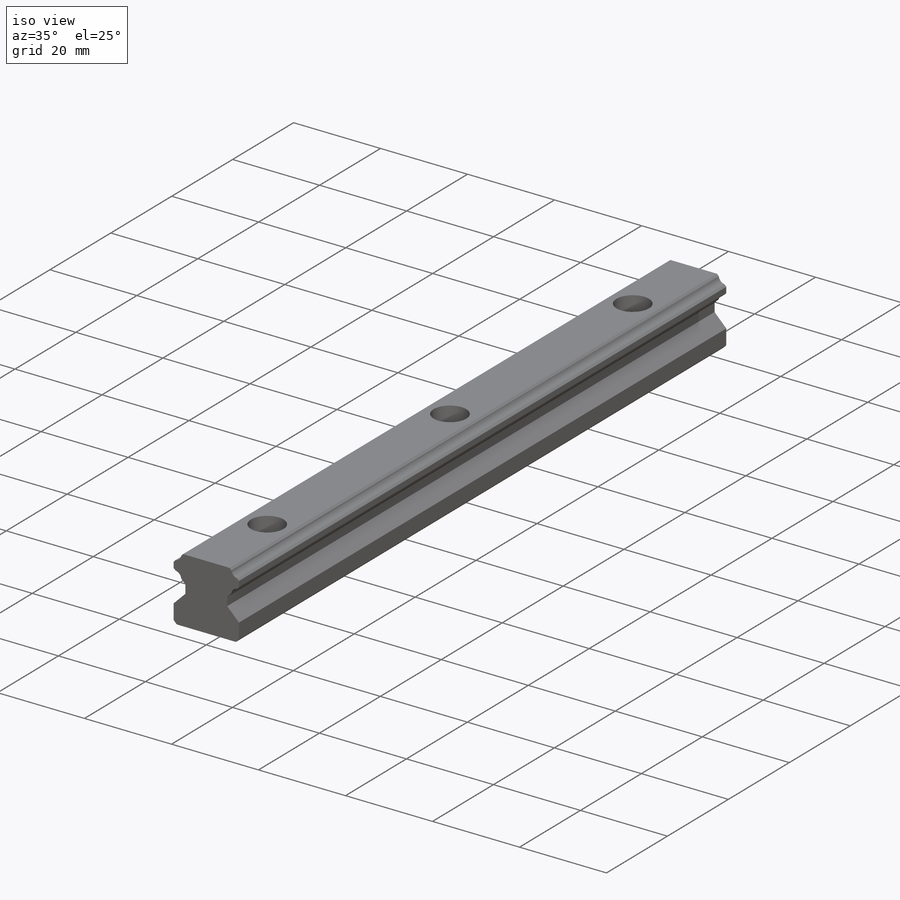
[diagram: iso view]
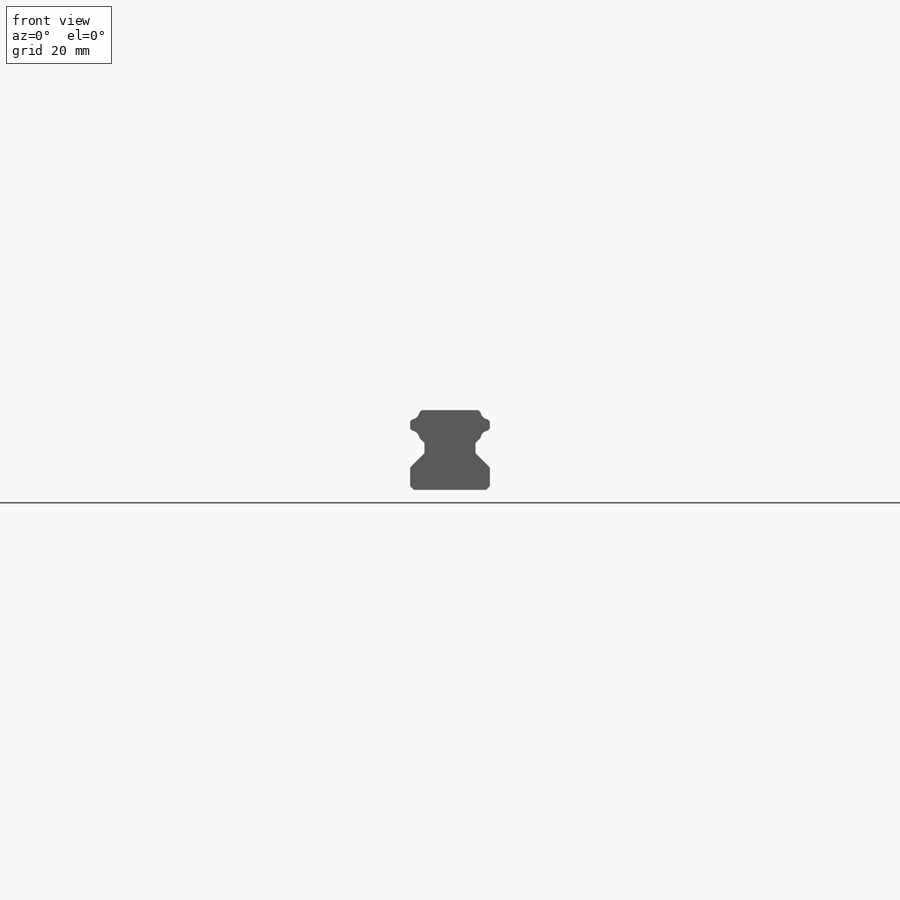
[diagram: front view]
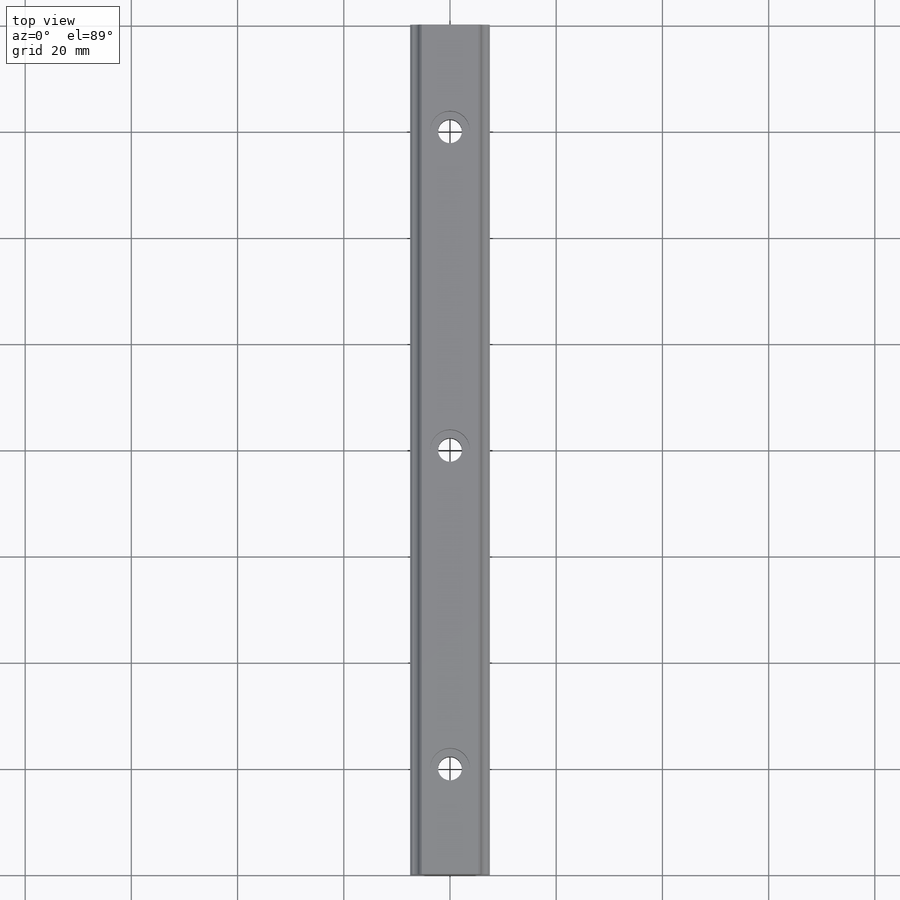
[diagram: top view]
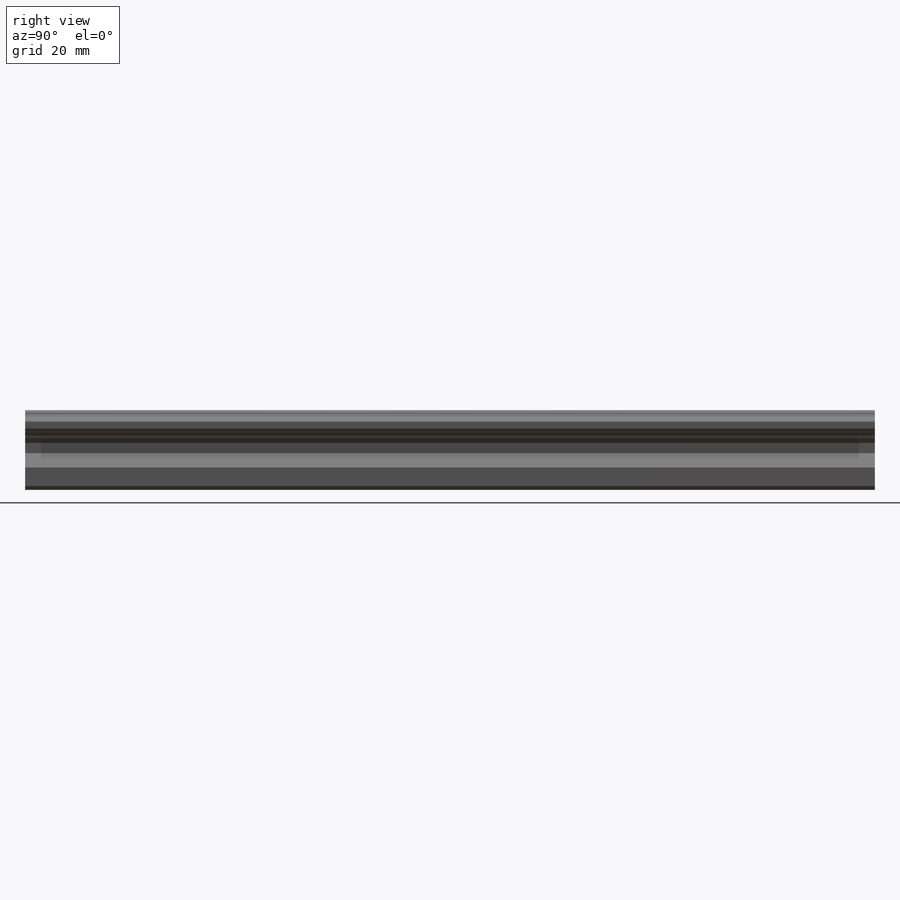
[diagram: right view]
SOLIDWORKS PART (.sldprt)
format: sldprt  version: not decoded by parser v0  size: 234,496 bytes
history: native  units: mm
features: sketch x2, material x1, extrude x1, cut_revolve x1, pattern_linear x1 (+13 scaffold rows collapsed)
feature tree (19):
  scaffold x13  (default folders/planes/origin — collapsed)
  material  "Material <not specified>"
  sketch  "Sketch1"  dims[D14=1.56mm D1=15.0mm D2=~0.699993mm D3=~0.699993mm D4=~4.200025mm D5=~6.900006mm D6=~8.840005mm D7=~4.800018mm D8=~5.755947mm D9=~0.405927mm D10=~0.405936mm D11=~1.731557mm D12=~2.14998mm D13=~3.460013mm D15=~7.094326mm D16=~3.865688mm D17=~5.205821mm D18=15.0mm]
  extrude  "Extrude1"  Depth=160mm
  sketch  "Sketch2"  dims[D1=5.3mm D2=7.5mm D3=4.5mm D4=20.0mm]
  cut_revolve  "Cut-Revolve1"  Angle=360deg
  pattern_linear  "LPattern1"  Count1=3 Count2=1 Spacing1=60mm Spacing2=1mm
decode coverage: 5 of 5 modeling features carry decoded parameters
note: ~ marks probable driven/reference dimensions
note: suppression state not decoded; provenance and decode notes live in map.json
